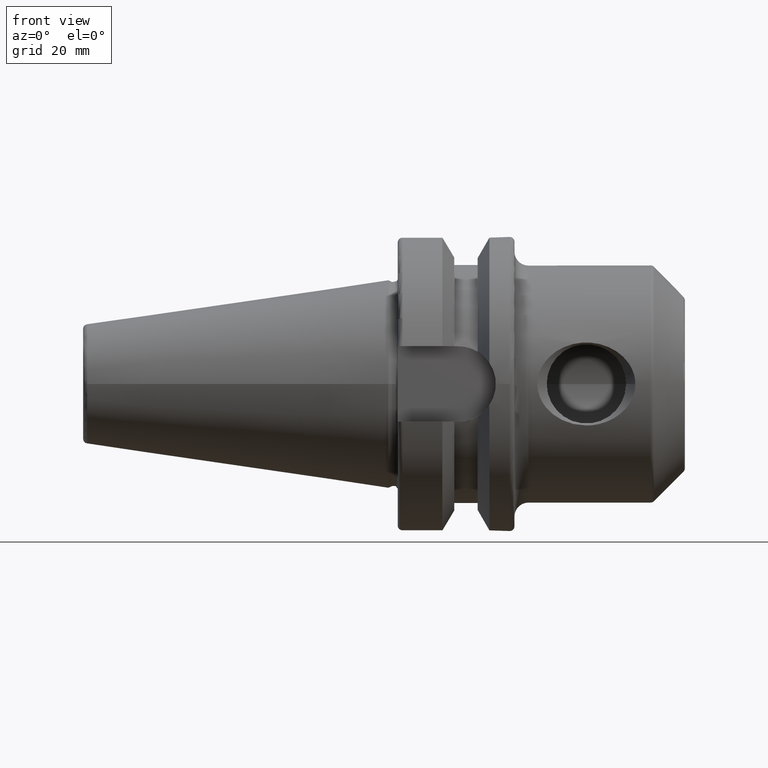
[diagram: clean part render]
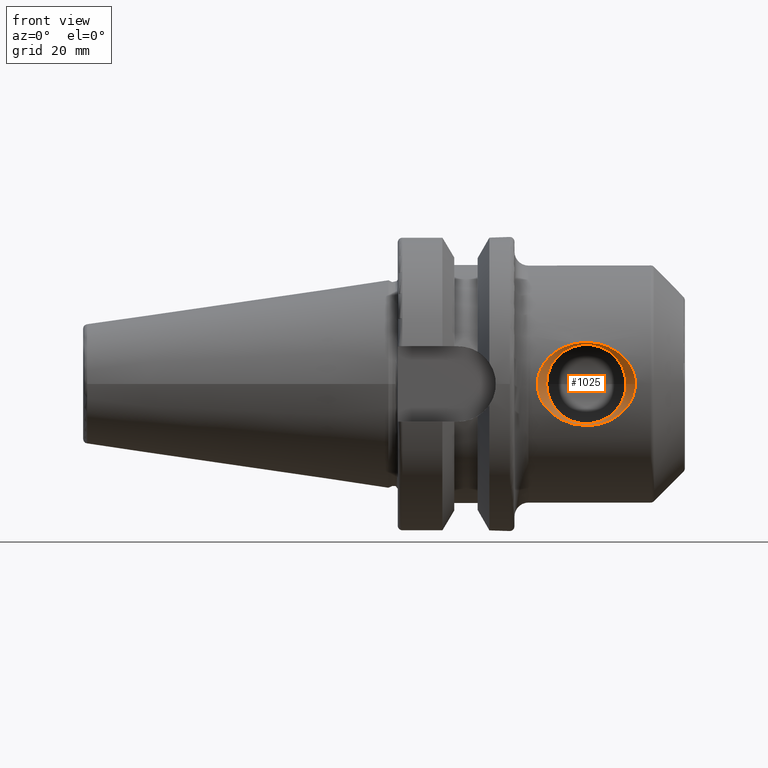
[diagram: same view with one face highlighted and labeled with its STEP entity id]
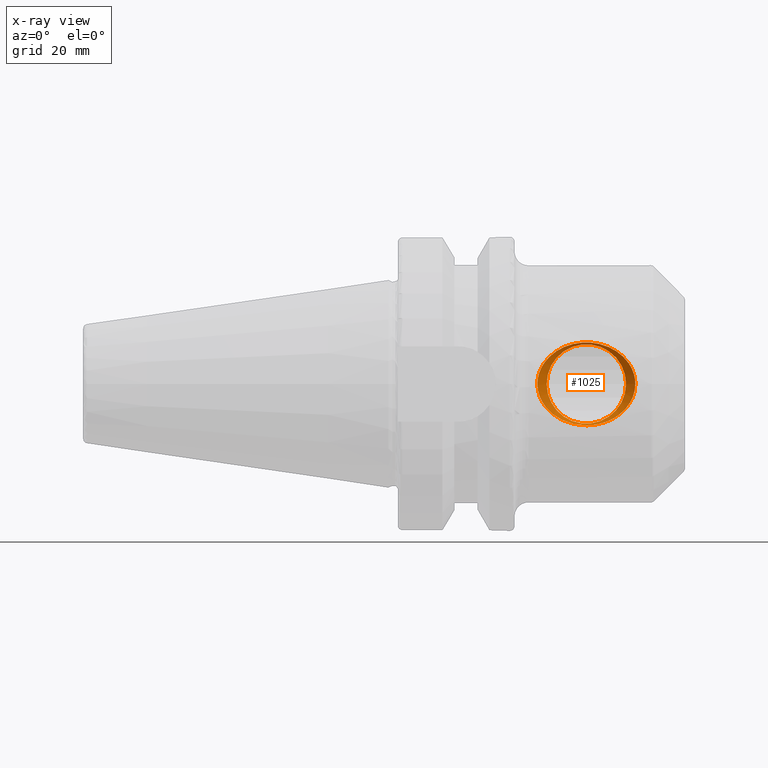
[diagram: x-ray of the same camera — body ghosted, the highlighted face saturated]
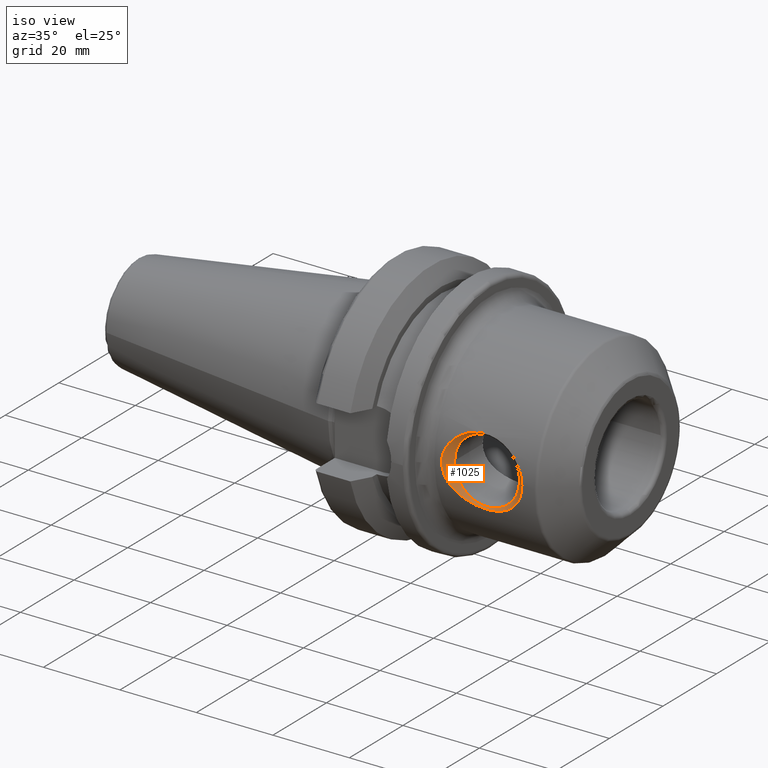
[diagram: same view with one face highlighted and labeled with its STEP entity id]
A machine part, front view. The second image highlights one B-rep face of the part: STEP entity #1025.
The next image is the same camera in x-ray: the body ghosted, the highlighted face saturated — about 0% of this face is hidden behind the body in this view.
A second angle (iso view) of the same face is appended — the face is thin or edge-on in the first view.
In plain terms, the highlighted conical surface has half-angle 45 deg.
Its self-contained STEP definition (entity closure, byte-faithful):
#19=CONICAL_SURFACE('',#1111,9.75,0.785398163397447);
#69=LINE('',#1707,#115);
#115=VECTOR('',#1280,9.75);
#180=FACE_OUTER_BOUND('',#236,.T.);
#236=EDGE_LOOP('',(#717,#718,#719,#720,#721,#722));
#303=CIRCLE('',#1109,8.5);
#304=CIRCLE('',#1110,8.5);
#391=B_SPLINE_CURVE_WITH_KNOTS('',3,(#1709,#1710,#1711,#1712,#1713,#1714,
#1715,#1716,#1717,#1718,#1719,#1720,#1721,#1722,#1723,#1724,#1725,#1726,
#1727,#1728,#1729,#1730,#1731,#1732,#1733,#1734),.UNSPECIFIED.,.F.,.F.,
(4,2,2,2,2,2,2,2,2,2,2,2,4),(0.,0.3610240901817,0.7220481803634,1.09870730632305,
1.4753664322827,1.85202555824235,2.228684684202,2.5897087743837,2.9507328645654,
3.3117569547471,3.67278104492881,4.04944017088846,4.42609929684811),
 .UNSPECIFIED.);
#392=B_SPLINE_CURVE_WITH_KNOTS('',3,(#1735,#1736,#1737,#1738,#1739,#1740,
#1741,#1742,#1743,#1744),.UNSPECIFIED.,.F.,.F.,(4,2,2,2,4),(4.42609929684811,
4.80275842280776,5.17941754876741,5.54044163894911,5.90146572913081),
 .UNSPECIFIED.);
#422=VERTEX_POINT('',#1701);
#423=VERTEX_POINT('',#1702);
#424=VERTEX_POINT('',#1706);
#425=VERTEX_POINT('',#1708);
#544=EDGE_CURVE('',#422,#423,#303,.T.);
#545=EDGE_CURVE('',#423,#422,#304,.T.);
#546=EDGE_CURVE('',#423,#424,#69,.T.);
#547=EDGE_CURVE('',#425,#424,#391,.T.);
#548=EDGE_CURVE('',#424,#425,#392,.T.);
#717=ORIENTED_EDGE('',*,*,#544,.F.);
#718=ORIENTED_EDGE('',*,*,#545,.F.);
#719=ORIENTED_EDGE('',*,*,#546,.T.);
#720=ORIENTED_EDGE('',*,*,#547,.F.);
#721=ORIENTED_EDGE('',*,*,#548,.F.);
#722=ORIENTED_EDGE('',*,*,#546,.F.);
#1025=ADVANCED_FACE('',(#180),#19,.F.);
#1109=AXIS2_PLACEMENT_3D('',#1703,#1274,#1275);
#1110=AXIS2_PLACEMENT_3D('',#1704,#1276,#1277);
#1111=AXIS2_PLACEMENT_3D('',#1705,#1278,#1279);
#1274=DIRECTION('center_axis',(0.,-1.,0.));
#1275=DIRECTION('ref_axis',(1.,0.,0.));
#1276=DIRECTION('center_axis',(0.,-1.,0.));
#1277=DIRECTION('ref_axis',(1.,0.,0.));
#1278=DIRECTION('center_axis',(0.,-1.,0.));
#1279=DIRECTION('ref_axis',(-1.,0.,0.));
#1280=DIRECTION('',(0.707106781186547,-0.707106781186548,8.65956056235493E-17));
#1701=CARTESIAN_POINT('',(33.9,-23.4,0.));
#1702=CARTESIAN_POINT('',(50.9,-23.4,1.04094977927525E-15));
#1703=CARTESIAN_POINT('Origin',(42.4,-23.4,0.));
#1704=CARTESIAN_POINT('Origin',(42.4,-23.4,0.));
#1705=CARTESIAN_POINT('Origin',(42.4,-24.65,0.));
#1706=CARTESIAN_POINT('',(52.9,-25.4,1.28587913910472E-15));
#1707=CARTESIAN_POINT('',(52.15,-24.65,1.19403062916867E-15));
#1708=CARTESIAN_POINT('',(42.4,-23.7925059277946,-8.89250592779455));
#1709=CARTESIAN_POINT('Ctrl Pts',(42.4,-23.7925059277946,-8.89250592779455));
#1710=CARTESIAN_POINT('Ctrl Pts',(41.196586366061,-23.7925059277946,-8.89250592779455));
#1711=CARTESIAN_POINT('Ctrl Pts',(39.9008548135324,-23.8656911476182,-8.70427240656399));
#1712=CARTESIAN_POINT('Ctrl Pts',(37.4607998542122,-24.1398142954509,-7.91232914597284));
#1713=CARTESIAN_POINT('Ctrl Pts',(36.3160094816915,-24.3372176404209,-7.30883874161161));
#1714=CARTESIAN_POINT('Ctrl Pts',(34.3895290313291,-24.7334738837625,-5.83301357455255));
#1715=CARTESIAN_POINT('Ctrl Pts',(33.4826770482316,-24.9620248182559,-4.83672333921457));
#1716=CARTESIAN_POINT('Ctrl Pts',(32.2366862365842,-25.2981978723389,-2.54907486354706));
#1717=CARTESIAN_POINT('Ctrl Pts',(31.9,-25.4,-1.2555304198655));
#1718=CARTESIAN_POINT('Ctrl Pts',(31.9,-25.4,1.2555304198655));
#1719=CARTESIAN_POINT('Ctrl Pts',(32.2366862365842,-25.2981978723389,2.54907486354706));
#1720=CARTESIAN_POINT('Ctrl Pts',(33.4826770482316,-24.9620248182559,4.83672333921457));
#1721=CARTESIAN_POINT('Ctrl Pts',(34.3895290313291,-24.7334738837625,5.83301357455255));
#1722=CARTESIAN_POINT('Ctrl Pts',(36.3160094816915,-24.3372176404209,7.30883874161161));
#1723=CARTESIAN_POINT('Ctrl Pts',(37.4607998542122,-24.1398142954509,7.91232914597284));
#1724=CARTESIAN_POINT('Ctrl Pts',(39.9008548135324,-23.8656911476182,8.70427240656399));
#1725=CARTESIAN_POINT('Ctrl Pts',(41.196586366061,-23.7925059277946,8.89250592779455));
#1726=CARTESIAN_POINT('Ctrl Pts',(43.603413633939,-23.7925059277946,8.89250592779455));
#1727=CARTESIAN_POINT('Ctrl Pts',(44.8991451864676,-23.8656911476182,8.70427240656399));
#1728=CARTESIAN_POINT('Ctrl Pts',(47.3392001457878,-24.1398142954509,7.91232914597283));
#1729=CARTESIAN_POINT('Ctrl Pts',(48.4839905183085,-24.3372176404209,7.30883874161161));
#1730=CARTESIAN_POINT('Ctrl Pts',(50.4104709686709,-24.7334738837625,5.83301357455255));
#1731=CARTESIAN_POINT('Ctrl Pts',(51.3173229517684,-24.9620248182559,4.83672333921457));
#1732=CARTESIAN_POINT('Ctrl Pts',(52.5633137634158,-25.2981978723389,2.54907486354706));
#1733=CARTESIAN_POINT('Ctrl Pts',(52.9,-25.4,1.25553041986551));
#1734=CARTESIAN_POINT('Ctrl Pts',(52.9,-25.4,3.60822483003176E-15));
#1735=CARTESIAN_POINT('Ctrl Pts',(52.9,-25.4,-8.32667268468867E-16));
#1736=CARTESIAN_POINT('Ctrl Pts',(52.9,-25.4,-1.2555304198655));
#1737=CARTESIAN_POINT('Ctrl Pts',(52.5633137634158,-25.2981978723389,-2.54907486354706));
#1738=CARTESIAN_POINT('Ctrl Pts',(51.3173229517684,-24.9620248182559,-4.83672333921457));
#1739=CARTESIAN_POINT('Ctrl Pts',(50.4104709686709,-24.7334738837625,-5.83301357455255));
#1740=CARTESIAN_POINT('Ctrl Pts',(48.4839905183085,-24.3372176404209,-7.30883874161161));
#1741=CARTESIAN_POINT('Ctrl Pts',(47.3392001457878,-24.1398142954509,-7.91232914597284));
#1742=CARTESIAN_POINT('Ctrl Pts',(44.8991451864676,-23.8656911476182,-8.70427240656399));
#1743=CARTESIAN_POINT('Ctrl Pts',(43.603413633939,-23.7925059277946,-8.89250592779455));
#1744=CARTESIAN_POINT('Ctrl Pts',(42.4,-23.7925059277946,-8.89250592779455));